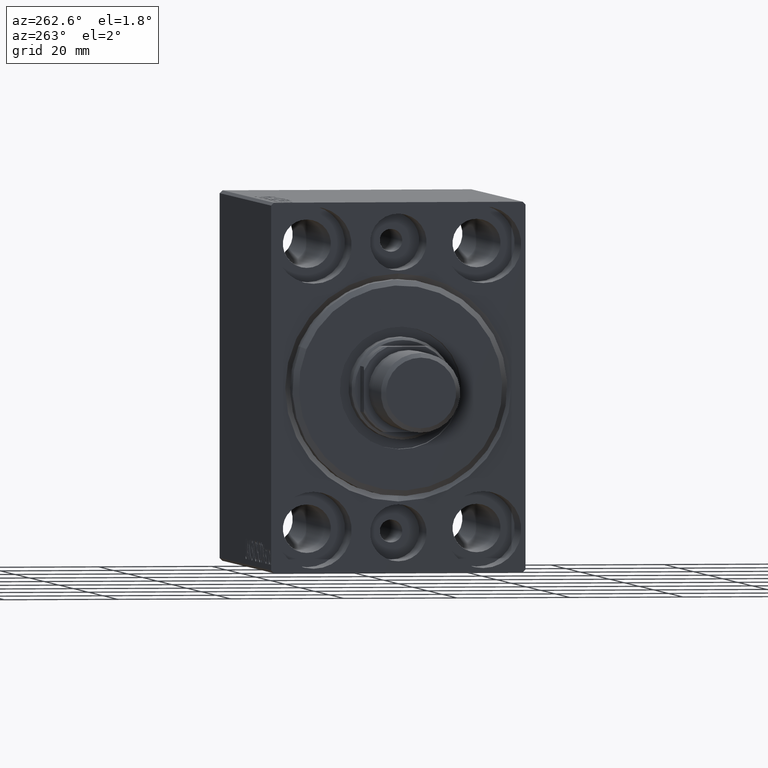
[diagram: clean part render]
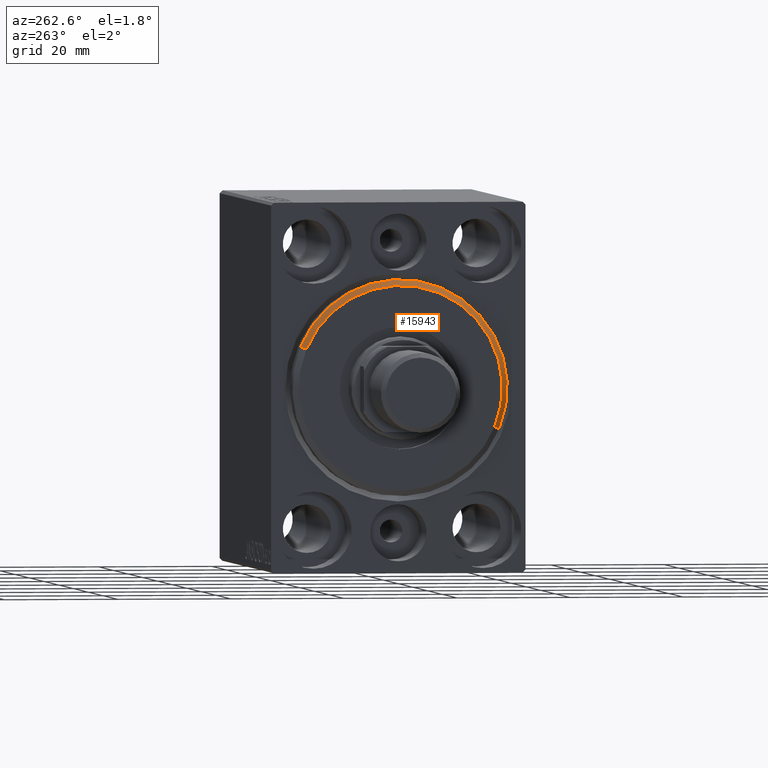
[diagram: same view with one face highlighted and labeled with its STEP entity id]
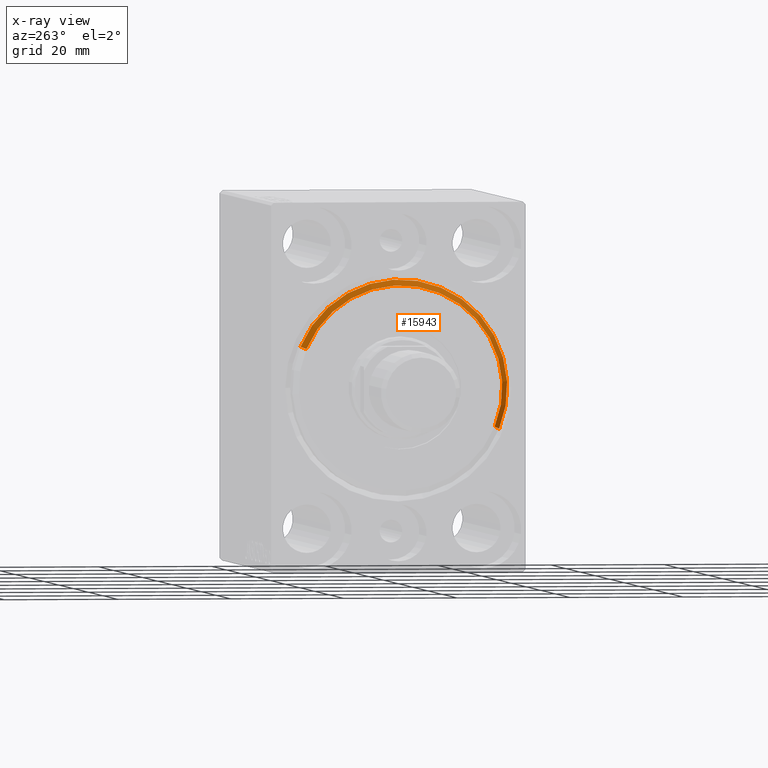
[diagram: x-ray of the same camera — body ghosted, the highlighted face saturated]
A machine part, auxiliary view. The second image highlights one B-rep face of the part: STEP entity #15943.
The next image is the same camera in x-ray: the body ghosted, the highlighted face saturated — about 0% of this face is hidden behind the body in this view.
In plain terms, the highlighted conical surface has half-angle 45 deg.
Its self-contained STEP definition (entity closure, byte-faithful):
#1116 = DIRECTION ( 'NONE',  ( 0.000000000000000000, 0.000000000000000000, 1.000000000000000000 ) ) ;
#1685 = VECTOR ( 'NONE', #40278, 1000.000000000000000 ) ;
#3840 = DIRECTION ( 'NONE',  ( 0.000000000000000000, 0.000000000000000000, -1.000000000000000000 ) ) ;
#4844 = VECTOR ( 'NONE', #16345, 1000.000000000000000 ) ;
#6386 = ORIENTED_EDGE ( 'NONE', *, *, #30659, .F. ) ;
#6725 = CARTESIAN_POINT ( 'NONE',  ( 1.999999999999992228, 0.000000000000000000, 19.00000000000000000 ) ) ;
#9184 = CARTESIAN_POINT ( 'NONE',  ( 3.000000000000000000, 2.265596578422603002E-15, -17.99999999999999645 ) ) ;
#9529 = EDGE_LOOP ( 'NONE', ( #39339, #34409, #25439, #6386 ) ) ;
#10696 = FACE_OUTER_BOUND ( 'NONE', #9529, .T. ) ;
#11150 = CARTESIAN_POINT ( 'NONE',  ( 3.000000000000000000, 0.000000000000000000, 0.000000000000000000 ) ) ;
#12355 = CONICAL_SURFACE ( 'NONE', #40907, 17.99999999999999645, 0.7853981633974466137 ) ;
#14817 = VERTEX_POINT ( 'NONE', #22990 ) ;
#15943 = ADVANCED_FACE ( 'NONE', ( #10696 ), #12355, .T. ) ;
#16141 = CIRCLE ( 'NONE', #41131, 17.99999999999999645 ) ;
#16345 = DIRECTION ( 'NONE',  ( -0.7071067811865487940, 8.659560562354918067E-17, -0.7071067811865463515 ) ) ;
#17196 = EDGE_CURVE ( 'NONE', #26307, #35821, #19292, .T. ) ;
#19244 = LINE ( 'NONE', #35988, #4844 ) ;
#19292 = LINE ( 'NONE', #22869, #1685 ) ;
#20818 = CARTESIAN_POINT ( 'NONE',  ( 1.999999999999992228, 0.000000000000000000, 0.000000000000000000 ) ) ;
#22060 = CARTESIAN_POINT ( 'NONE',  ( 3.000000000000000000, 0.000000000000000000, 0.000000000000000000 ) ) ;
#22869 = CARTESIAN_POINT ( 'NONE',  ( 3.000000000000000000, 0.000000000000000000, 17.99999999999999645 ) ) ;
#22990 = CARTESIAN_POINT ( 'NONE',  ( 1.999999999999992228, 2.326828918379970970E-15, -19.00000000000000000 ) ) ;
#25439 = ORIENTED_EDGE ( 'NONE', *, *, #17196, .T. ) ;
#26307 = VERTEX_POINT ( 'NONE', #31919 ) ;
#30659 = EDGE_CURVE ( 'NONE', #14817, #35821, #37569, .T. ) ;
#30844 = EDGE_CURVE ( 'NONE', #26307, #36631, #16141, .T. ) ;
#31919 = CARTESIAN_POINT ( 'NONE',  ( 3.000000000000000000, 0.000000000000000000, 17.99999999999999645 ) ) ;
#32314 = DIRECTION ( 'NONE',  ( 1.000000000000000000, -0.000000000000000000, 0.000000000000000000 ) ) ;
#32363 = EDGE_CURVE ( 'NONE', #36631, #14817, #19244, .T. ) ;
#33981 = AXIS2_PLACEMENT_3D ( 'NONE', #20818, #34431, #3840 ) ;
#34409 = ORIENTED_EDGE ( 'NONE', *, *, #30844, .F. ) ;
#34431 = DIRECTION ( 'NONE',  ( -1.000000000000000000, 0.000000000000000000, 0.000000000000000000 ) ) ;
#35666 = DIRECTION ( 'NONE',  ( 0.000000000000000000, 0.000000000000000000, -1.000000000000000000 ) ) ;
#35821 = VERTEX_POINT ( 'NONE', #6725 ) ;
#35988 = CARTESIAN_POINT ( 'NONE',  ( 3.000000000000000000, 2.204364238465235033E-15, -17.99999999999999645 ) ) ;
#36631 = VERTEX_POINT ( 'NONE', #9184 ) ;
#37569 = CIRCLE ( 'NONE', #33981, 19.00000000000000000 ) ;
#38177 = DIRECTION ( 'NONE',  ( -1.000000000000000000, 0.000000000000000000, 0.000000000000000000 ) ) ;
#39339 = ORIENTED_EDGE ( 'NONE', *, *, #32363, .F. ) ;
#40278 = DIRECTION ( 'NONE',  ( -0.7071067811865487940, 0.000000000000000000, 0.7071067811865463515 ) ) ;
#40907 = AXIS2_PLACEMENT_3D ( 'NONE', #11150, #38177, #1116 ) ;
#41131 = AXIS2_PLACEMENT_3D ( 'NONE', #22060, #32314, #35666 ) ;